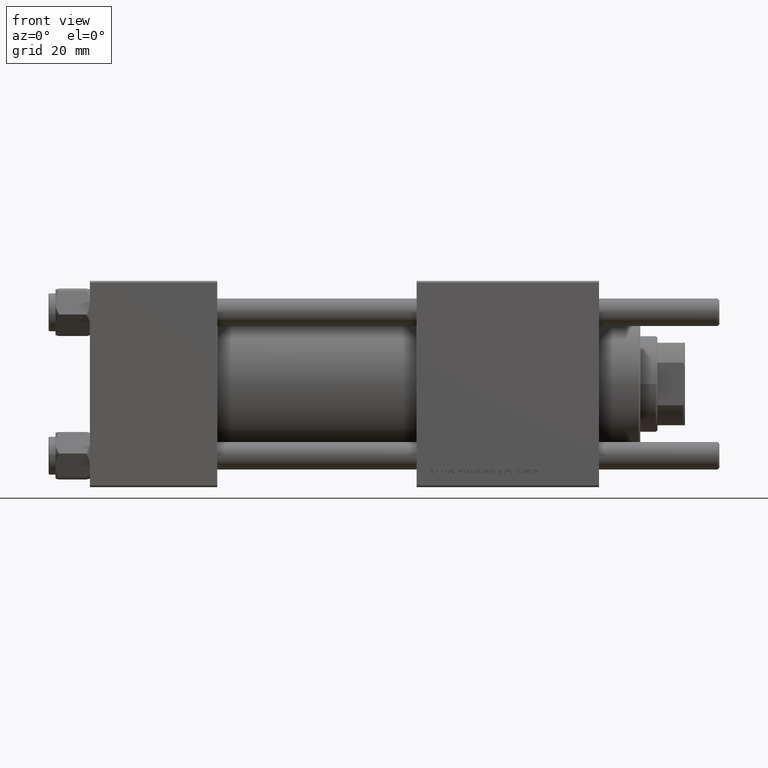
[diagram: clean part render]
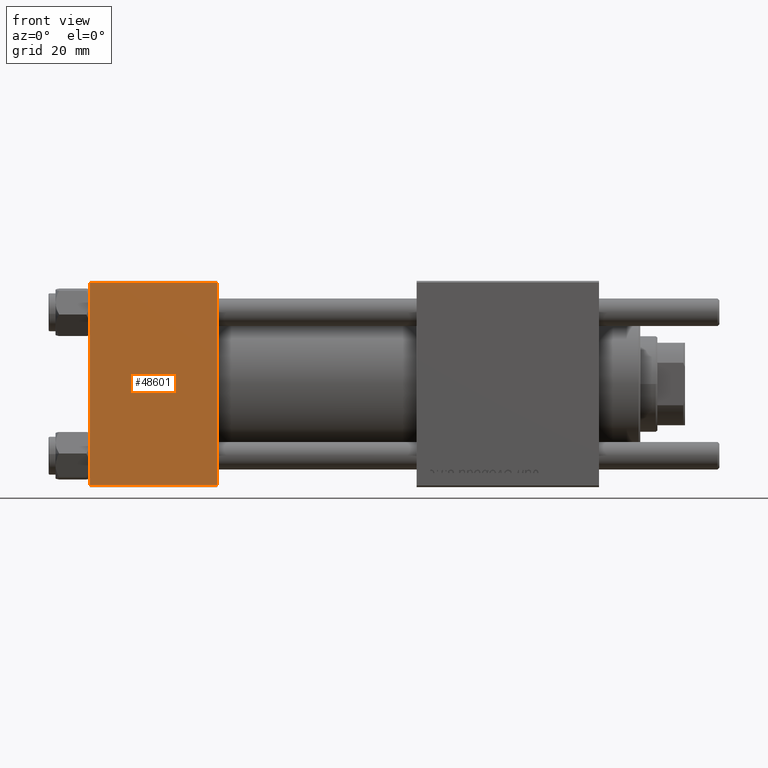
[diagram: same view with one face highlighted and labeled with its STEP entity id]
A machine part, front view. The second image highlights one B-rep face of the part: STEP entity #48601.
In plain terms, the highlighted planar face has unit normal (0, 1, 0).
Its self-contained STEP definition (entity closure, byte-faithful):
#1634 = DIRECTION ( 'NONE',  ( 0.000000000000000000, -0.000000000000000000, 1.000000000000000000 ) ) ;
#2025 = ORIENTED_EDGE ( 'NONE', *, *, #28189, .T. ) ;
#2384 = ORIENTED_EDGE ( 'NONE', *, *, #14528, .F. ) ;
#2780 = DIRECTION ( 'NONE',  ( -0.000000000000000000, 1.000000000000000000, 0.000000000000000000 ) ) ;
#5396 = CARTESIAN_POINT ( 'NONE',  ( 0.000000000000000000, -30.00000000000000000, 29.49999999999999289 ) ) ;
#7134 = LINE ( 'NONE', #50787, #8360 ) ;
#8360 = VECTOR ( 'NONE', #37300, 1000.000000000000000 ) ;
#8687 = LINE ( 'NONE', #49163, #28613 ) ;
#9455 = VECTOR ( 'NONE', #34246, 1000.000000000000000 ) ;
#12537 = ORIENTED_EDGE ( 'NONE', *, *, #19257, .T. ) ;
#14528 = EDGE_CURVE ( 'NONE', #19927, #52022, #8687, .T. ) ;
#16332 = CARTESIAN_POINT ( 'NONE',  ( 37.00000000000000000, -30.00000000000000000, -29.50000000000001776 ) ) ;
#19257 = EDGE_CURVE ( 'NONE', #19333, #52022, #42873, .T. ) ;
#19333 = VERTEX_POINT ( 'NONE', #30776 ) ;
#19927 = VERTEX_POINT ( 'NONE', #26525 ) ;
#20252 = LINE ( 'NONE', #33469, #24041 ) ;
#24041 = VECTOR ( 'NONE', #55870, 1000.000000000000000 ) ;
#26176 = VERTEX_POINT ( 'NONE', #5396 ) ;
#26211 = DIRECTION ( 'NONE',  ( 0.000000000000000000, 0.000000000000000000, -1.000000000000000000 ) ) ;
#26525 = CARTESIAN_POINT ( 'NONE',  ( 37.00000000000000000, -30.00000000000000000, 29.49999999999999289 ) ) ;
#26643 = FACE_OUTER_BOUND ( 'NONE', #30937, .T. ) ;
#26742 = EDGE_CURVE ( 'NONE', #19927, #26176, #20252, .T. ) ;
#27121 = AXIS2_PLACEMENT_3D ( 'NONE', #54203, #2780, #1634 ) ;
#28189 = EDGE_CURVE ( 'NONE', #26176, #19333, #7134, .T. ) ;
#28613 = VECTOR ( 'NONE', #26211, 1000.000000000000000 ) ;
#30776 = CARTESIAN_POINT ( 'NONE',  ( 0.000000000000000000, -30.00000000000000000, -29.50000000000001776 ) ) ;
#30937 = EDGE_LOOP ( 'NONE', ( #2025, #12537, #2384, #45651 ) ) ;
#33469 = CARTESIAN_POINT ( 'NONE',  ( 37.00000000000000000, -30.00000000000000000, 29.49999999999999289 ) ) ;
#34246 = DIRECTION ( 'NONE',  ( 1.000000000000000000, 0.000000000000000000, 0.000000000000000000 ) ) ;
#37300 = DIRECTION ( 'NONE',  ( 0.000000000000000000, 0.000000000000000000, -1.000000000000000000 ) ) ;
#39856 = PLANE ( 'NONE',  #27121 ) ;
#42873 = LINE ( 'NONE', #52046, #9455 ) ;
#45651 = ORIENTED_EDGE ( 'NONE', *, *, #26742, .T. ) ;
#48601 = ADVANCED_FACE ( 'NONE', ( #26643 ), #39856, .F. ) ;
#49163 = CARTESIAN_POINT ( 'NONE',  ( 37.00000000000000000, -30.00000000000000000, 29.99999999999999289 ) ) ;
#50787 = CARTESIAN_POINT ( 'NONE',  ( 0.000000000000000000, -30.00000000000000000, 29.99999999999999289 ) ) ;
#52022 = VERTEX_POINT ( 'NONE', #16332 ) ;
#52046 = CARTESIAN_POINT ( 'NONE',  ( 37.00000000000000000, -30.00000000000000000, -29.50000000000001776 ) ) ;
#54203 = CARTESIAN_POINT ( 'NONE',  ( 37.00000000000000000, -30.00000000000000000, 29.99999999999999289 ) ) ;
#55870 = DIRECTION ( 'NONE',  ( -1.000000000000000000, 0.000000000000000000, 0.000000000000000000 ) ) ;